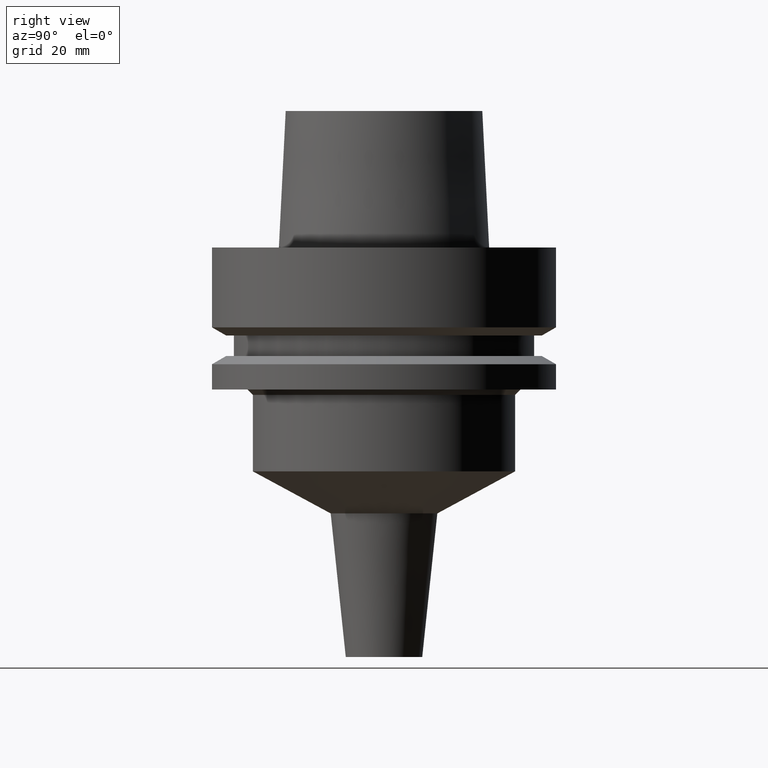
[diagram: clean part render]
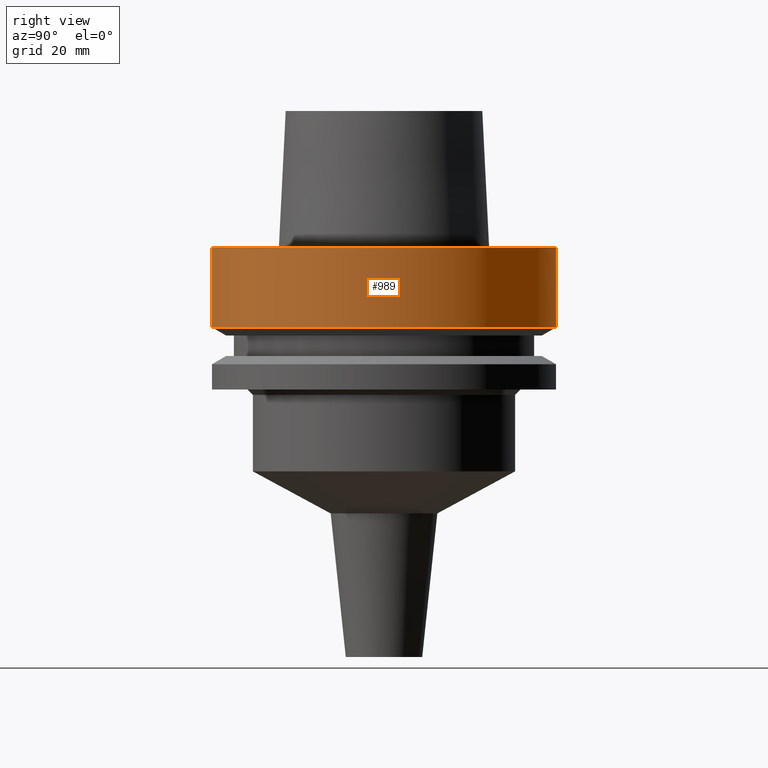
[diagram: same view with one face highlighted and labeled with its STEP entity id]
A machine part, right view. The second image highlights one B-rep face of the part: STEP entity #989.
In plain terms, the highlighted cylindrical surface (partial cylindrical patch) has radius 31.5 mm, axis along (0, 0, -1).
Its self-contained STEP definition (entity closure, byte-faithful):
#72=CARTESIAN_POINT('',(0.E0,0.E0,0.E0));
#73=DIRECTION('',(0.E0,0.E0,-1.E0));
#74=DIRECTION('',(0.E0,1.E0,0.E0));
#75=AXIS2_PLACEMENT_3D('',#72,#73,#74);
#96=DIRECTION('',(0.E0,-4.130355870613E-14,-1.E0));
#97=VECTOR('',#96,1.462250092524E1);
#98=CARTESIAN_POINT('',(0.E0,-3.15E1,0.E0));
#99=LINE('',#98,#97);
#103=DIRECTION('',(0.E0,4.130355870613E-14,-1.E0));
#104=VECTOR('',#103,1.462250092524E1);
#105=CARTESIAN_POINT('',(0.E0,3.15E1,0.E0));
#106=LINE('',#105,#104);
#117=CARTESIAN_POINT('',(0.E0,0.E0,-1.462250092524E1));
#118=DIRECTION('',(0.E0,0.E0,1.E0));
#119=DIRECTION('',(0.E0,-1.E0,0.E0));
#120=AXIS2_PLACEMENT_3D('',#117,#118,#119);
#888=CARTESIAN_POINT('',(0.E0,3.15E1,-1.462250092524E1));
#889=VERTEX_POINT('',#888);
#890=CARTESIAN_POINT('',(0.E0,-3.15E1,-1.462250092524E1));
#891=VERTEX_POINT('',#890);
#892=CARTESIAN_POINT('',(0.E0,3.15E1,0.E0));
#893=VERTEX_POINT('',#892);
#894=CARTESIAN_POINT('',(0.E0,-3.15E1,0.E0));
#895=VERTEX_POINT('',#894);
#977=CARTESIAN_POINT('',(0.E0,0.E0,3.E1));
#978=DIRECTION('',(0.E0,0.E0,-1.E0));
#979=DIRECTION('',(0.E0,-1.E0,0.E0));
#980=AXIS2_PLACEMENT_3D('',#977,#978,#979);
#981=CYLINDRICAL_SURFACE('',#980,3.15E1);
#982=ORIENTED_EDGE('',*,*,#967,.T.);
#984=ORIENTED_EDGE('',*,*,#983,.F.);
#985=ORIENTED_EDGE('',*,*,#970,.F.);
#986=ORIENTED_EDGE('',*,*,#953,.F.);
#987=EDGE_LOOP('',(#982,#984,#985,#986));
#988=FACE_OUTER_BOUND('',#987,.F.);
#76=CIRCLE('',#75,3.15E1);
#121=CIRCLE('',#120,3.15E1);
#953=EDGE_CURVE('',#893,#895,#76,.T.);
#967=EDGE_CURVE('',#893,#889,#106,.T.);
#970=EDGE_CURVE('',#895,#891,#99,.T.);
#983=EDGE_CURVE('',#891,#889,#121,.T.);
#989=ADVANCED_FACE('',(#988),#981,.T.);